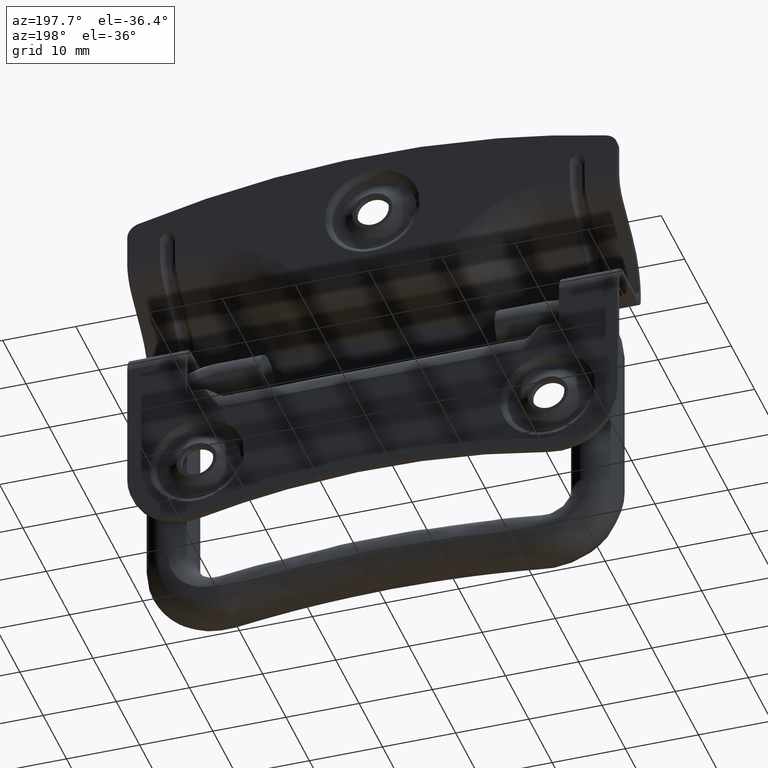
[diagram: clean part render]
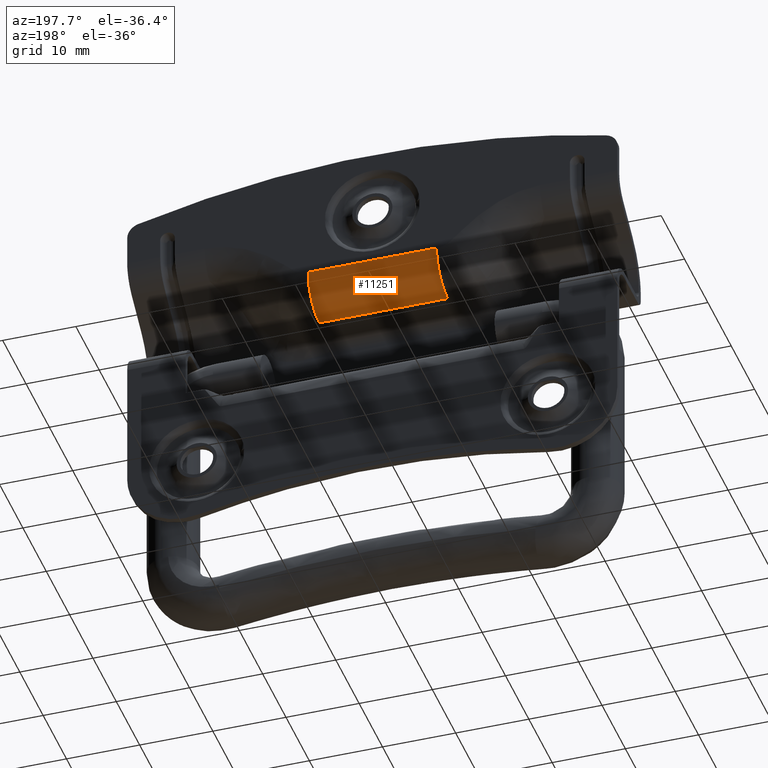
[diagram: same view with one face highlighted and labeled with its STEP entity id]
A machine part, auxiliary view. The second image highlights one B-rep face of the part: STEP entity #11251.
In plain terms, the highlighted face is a freeform B-spline surface patch.
Its self-contained STEP definition (entity closure, byte-faithful):
#11156=CARTESIAN_POINT('',(-8.777150529513211,5.699999999999901,12.000000000000201));
#11157=VERTEX_POINT('',#11156);
#11158=CARTESIAN_POINT('',(-8.777150529513211,0.899999999999901,7.200000000000200));
#11159=VERTEX_POINT('',#11158);
#11160=CARTESIAN_POINT('',(-8.777150529513211,5.699999999999904,12.000000000000201));
#11161=CARTESIAN_POINT('',(-8.777150529513211,5.699999999999905,10.011774900609344));
#11162=CARTESIAN_POINT('',(-8.777150529513211,4.294112549695332,8.605887450304772));
#11163=CARTESIAN_POINT('',(-8.777150529513211,2.888225099390761,7.200000000000200));
#11164=CARTESIAN_POINT('',(-8.777150529513211,0.899999999999904,7.200000000000200));
#11172=(BOUNDED_CURVE()B_SPLINE_CURVE(2,(#11160,#11161,#11162,#11163,#11164),.UNSPECIFIED.,.F.,.U.)B_SPLINE_CURVE_WITH_KNOTS((3,2,3),(0.0,0.500000000000000,1.0),.UNSPECIFIED.)CURVE()GEOMETRIC_REPRESENTATION_ITEM()RATIONAL_B_SPLINE_CURVE((1.0,0.923879532511287,1.0,0.923879532511287,1.0))REPRESENTATION_ITEM(''));
#11173=EDGE_CURVE('',#11157,#11159,#11172,.T.);
#11205=CARTESIAN_POINT('',(9.216008055988874,0.690626940646291,7.204568536407283));
#11206=CARTESIAN_POINT('',(-9.226979494150768,0.690626940646291,7.204568536407283));
#11207=CARTESIAN_POINT('',(9.216008055988878,6.065089270916737,6.969914443441397));
#11208=CARTESIAN_POINT('',(-9.226979494150768,6.065089270916737,6.969914443441397));
#11209=CARTESIAN_POINT('',(9.216008055988876,5.688205983419021,12.336278843148760));
#11210=CARTESIAN_POINT('',(-9.226979494150768,5.688205983419021,12.336278843148760));
#11218=(BOUNDED_SURFACE()B_SPLINE_SURFACE(1,2,((#11205,#11207,#11209),(#11206,#11208,#11210)),.UNSPECIFIED.,.F.,.F.,.U.)B_SPLINE_SURFACE_WITH_KNOTS((2,2),(3,3),(0.0,18.442987550139652),(0.0,8.600364192854547),.UNSPECIFIED.)GEOMETRIC_REPRESENTATION_ITEM()RATIONAL_B_SPLINE_SURFACE(((1.0,0.664513898472343,0.996233561383210),(1.0,0.664513898472343,0.996233561383210)))REPRESENTATION_ITEM('')SURFACE());
#11219=CARTESIAN_POINT('',(8.777150529513211,5.699999999999901,12.000000000000201));
#11220=VERTEX_POINT('',#11219);
#11221=CARTESIAN_POINT('',(8.777150529513211,0.899999999999901,7.200000000000200));
#11222=VERTEX_POINT('',#11221);
#11223=CARTESIAN_POINT('',(8.777150529513211,5.699999999999904,12.000000000000201));
#11224=CARTESIAN_POINT('',(8.777150529513211,5.699999999999905,10.011774900609344));
#11225=CARTESIAN_POINT('',(8.777150529513211,4.294112549695332,8.605887450304772));
#11226=CARTESIAN_POINT('',(8.777150529513211,2.888225099390761,7.200000000000200));
#11227=CARTESIAN_POINT('',(8.777150529513211,0.899999999999904,7.200000000000200));
#11235=(BOUNDED_CURVE()B_SPLINE_CURVE(2,(#11223,#11224,#11225,#11226,#11227),.UNSPECIFIED.,.F.,.U.)B_SPLINE_CURVE_WITH_KNOTS((3,2,3),(0.0,0.500000000000000,1.0),.UNSPECIFIED.)CURVE()GEOMETRIC_REPRESENTATION_ITEM()RATIONAL_B_SPLINE_CURVE((1.0,0.923879532511287,1.0,0.923879532511287,1.0))REPRESENTATION_ITEM(''));
#11236=EDGE_CURVE('',#11220,#11222,#11235,.T.);
#11237=ORIENTED_EDGE('',*,*,#11236,.T.);
#11238=CARTESIAN_POINT('',(-8.777150529513211,0.899999999999901,7.200000000000200));
#11239=CARTESIAN_POINT('',(8.777150529513211,0.899999999999901,7.200000000000200));
#11240=QUASI_UNIFORM_CURVE('',1,(#11238,#11239),.UNSPECIFIED.,.F.,.U.);
#11241=EDGE_CURVE('',#11159,#11222,#11240,.T.);
#11242=ORIENTED_EDGE('',*,*,#11241,.F.);
#11243=ORIENTED_EDGE('',*,*,#11173,.F.);
#11244=CARTESIAN_POINT('',(8.777150529513211,5.699999999999901,12.000000000000201));
#11245=CARTESIAN_POINT('',(-8.777150529513211,5.699999999999901,12.000000000000201));
#11246=QUASI_UNIFORM_CURVE('',1,(#11244,#11245),.UNSPECIFIED.,.F.,.U.);
#11247=EDGE_CURVE('',#11220,#11157,#11246,.T.);
#11248=ORIENTED_EDGE('',*,*,#11247,.F.);
#11249=EDGE_LOOP('',(#11237,#11242,#11243,#11248));
#11250=FACE_OUTER_BOUND('',#11249,.T.);
#11251=ADVANCED_FACE('',(#11250),#11218,.T.);